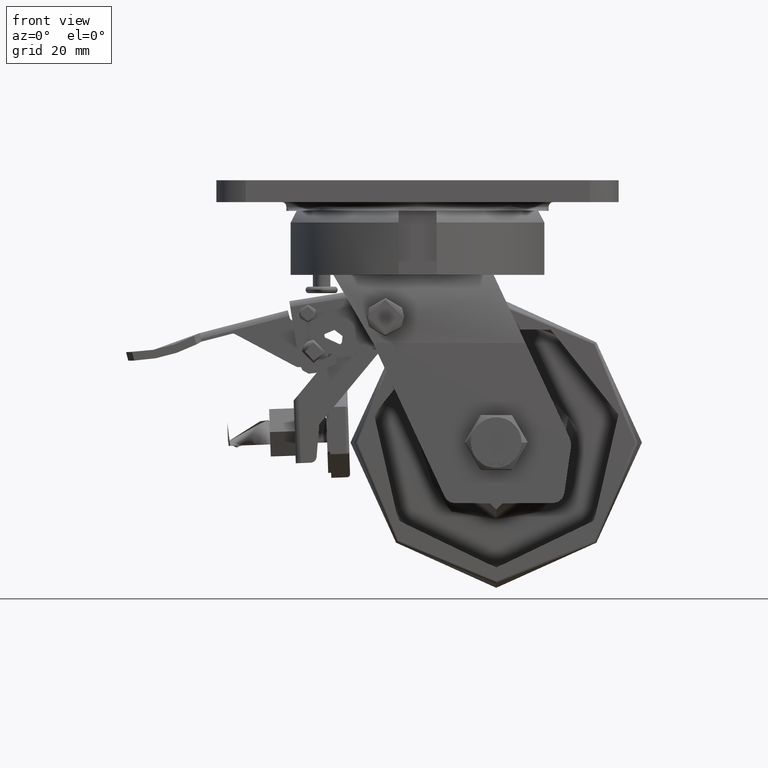
[diagram: clean part render]
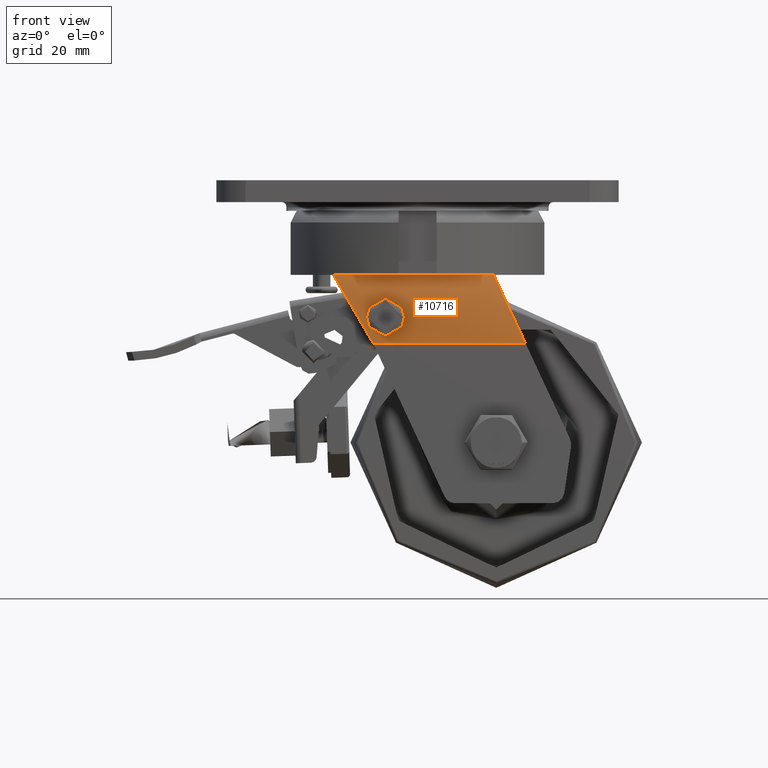
[diagram: same view with one face highlighted and labeled with its STEP entity id]
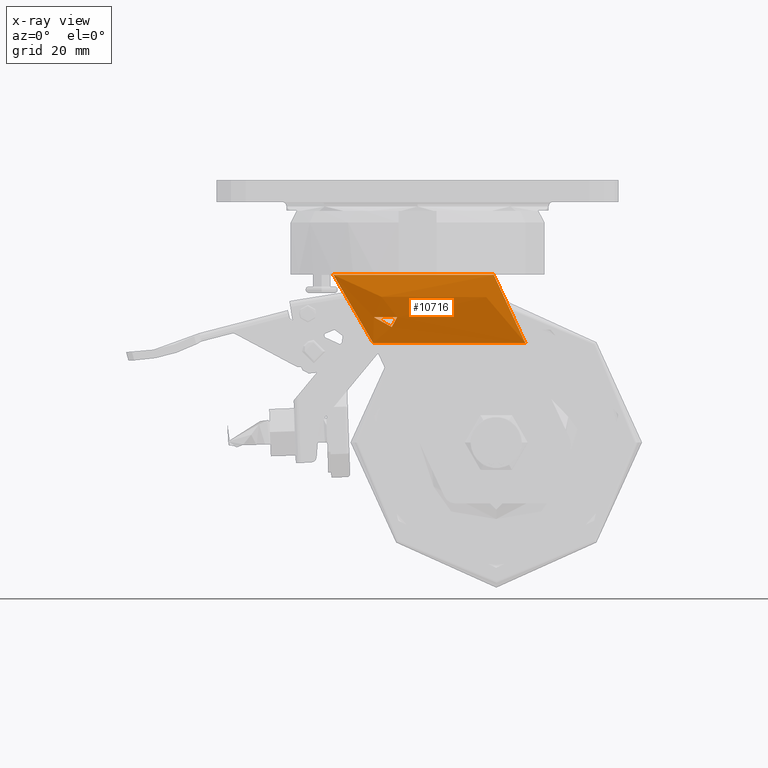
[diagram: x-ray of the same camera — body ghosted, the highlighted face saturated]
A machine part, front view. The second image highlights one B-rep face of the part: STEP entity #10716.
The next image is the same camera in x-ray: the body ghosted, the highlighted face saturated — about 0% of this face is hidden behind the body in this view.
In plain terms, the highlighted face is a freeform B-spline surface patch.
Its self-contained STEP definition (entity closure, byte-faithful):
#182=B_SPLINE_SURFACE_WITH_KNOTS('',3,3,((#28314,#28315,#28316,#28317),
(#28318,#28319,#28320,#28321),(#28322,#28323,#28324,#28325),(#28326,#28327,
#28328,#28329),(#28330,#28331,#28332,#28333),(#28334,#28335,#28336,#28337),
(#28338,#28339,#28340,#28341),(#28342,#28343,#28344,#28345),(#28346,#28347,
#28348,#28349),(#28350,#28351,#28352,#28353),(#28354,#28355,#28356,#28357),
(#28358,#28359,#28360,#28361),(#28362,#28363,#28364,#28365),(#28366,#28367,
#28368,#28369),(#28370,#28371,#28372,#28373),(#28374,#28375,#28376,#28377),
(#28378,#28379,#28380,#28381),(#28382,#28383,#28384,#28385),(#28386,#28387,
#28388,#28389)),.UNSPECIFIED.,.F.,.F.,.F.,(4,3,3,3,3,3,4),(4,4),(-0.00370990396191416,
0.131550517939822,0.364160776380593,0.53718919869411,0.791499248237611,
0.917101152538548,1.0396717818821),(0.,1.),.UNSPECIFIED.);
#360=FACE_BOUND('',#2364,.T.);
#1073=B_SPLINE_CURVE_WITH_KNOTS('',3,(#27824,#27825,#27826,#27827,#27828,
#27829,#27830,#27831,#27832,#27833,#27834,#27835,#27836,#27837,#27838,#27839,
#27840,#27841,#27842,#27843,#27844,#27845,#27846,#27847),.UNSPECIFIED.,
 .F.,.F.,(4,2,2,2,2,2,2,2,2,2,2,4),(-1.66499852036268,-1.54297382093663,
-1.41859001527712,-1.2800342476262,-1.12120778921487,-1.038637875872,-0.977654655405833,
-0.916499382852849,-0.832782608611801,-0.675787088162486,-0.536087213137494,
-0.40111383823658),.UNSPECIFIED.);
#1074=B_SPLINE_CURVE_WITH_KNOTS('',3,(#27849,#27850,#27851,#27852,#27853,
#27854,#27855,#27856,#27857,#27858,#27859,#27860,#27861,#27862,#27863,#27864,
#27865,#27866),.UNSPECIFIED.,.F.,.F.,(4,2,2,2,2,2,2,2,4),(-0.861100462876619,
-0.765535323853415,-0.668712121977349,-0.595200320357881,-0.522276040263934,
-0.429893753316313,-0.283446282000829,-0.142810410142772,-9.99999080875114E-7),
 .UNSPECIFIED.);
#1075=B_SPLINE_CURVE_WITH_KNOTS('',3,(#27867,#27868,#27869,#27870,#27871,
#27872,#27873,#27874,#27875,#27876),.UNSPECIFIED.,.F.,.F.,(4,2,2,2,4),(-0.40111383823658,
-0.386698437178482,-0.2267043317251,-0.123273477841745,-1.00000005165413E-6),
 .UNSPECIFIED.);
#1079=B_SPLINE_CURVE_WITH_KNOTS('',3,(#28270,#28271,#28272,#28273,#28274,
#28275,#28276,#28277,#28278,#28279),.UNSPECIFIED.,.F.,.F.,(4,2,2,2,4),(1.09375907150143E-7,
0.678767673548421,1.39816113454965,2.15377408914372,2.96856502057482),
 .UNSPECIFIED.);
#1080=B_SPLINE_CURVE_WITH_KNOTS('',3,(#28308,#28309,#28310,#28311,#28312,
#28313),.UNSPECIFIED.,.F.,.F.,(4,2,4),(-2.03063581983728,-0.878524468392631,
0.),.UNSPECIFIED.);
#1081=B_SPLINE_CURVE_WITH_KNOTS('',3,(#28390,#28391,#28392,#28393,#28394,
#28395,#28396,#28397,#28398,#28399,#28400,#28401,#28402,#28403,#28404,#28405,
#28406,#28407,#28408),.UNSPECIFIED.,.F.,.F.,(4,3,3,3,3,3,4),(-0.999999996485037,
-0.917101152538548,-0.791499248237611,-0.53718919869411,-0.364160776380593,
-0.131550517939822,1.97638801784676E-9),.UNSPECIFIED.);
#1653=FACE_OUTER_BOUND('',#2363,.T.);
#2363=EDGE_LOOP('',(#9098,#9099,#9100,#9101));
#2364=EDGE_LOOP('',(#9102,#9103,#9104));
#3139=LINE('',#28303,#3937);
#3937=VECTOR('',#14274,1000.);
#5282=VERTEX_POINT('',#27821);
#5283=VERTEX_POINT('',#27823);
#5284=VERTEX_POINT('',#27848);
#5294=VERTEX_POINT('',#27897);
#5297=VERTEX_POINT('',#28269);
#5303=VERTEX_POINT('',#28302);
#5304=VERTEX_POINT('',#28306);
#6595=EDGE_CURVE('',#5283,#5282,#1073,.T.);
#6596=EDGE_CURVE('',#5284,#5283,#1074,.T.);
#6597=EDGE_CURVE('',#5282,#5284,#1075,.T.);
#6612=EDGE_CURVE('',#5297,#5294,#1079,.T.);
#6624=EDGE_CURVE('',#5303,#5294,#3139,.T.);
#6627=EDGE_CURVE('',#5304,#5303,#1080,.T.);
#6628=EDGE_CURVE('',#5297,#5304,#1081,.T.);
#9098=ORIENTED_EDGE('',*,*,#6628,.F.);
#9099=ORIENTED_EDGE('',*,*,#6612,.T.);
#9100=ORIENTED_EDGE('',*,*,#6624,.F.);
#9101=ORIENTED_EDGE('',*,*,#6627,.F.);
#9102=ORIENTED_EDGE('',*,*,#6596,.T.);
#9103=ORIENTED_EDGE('',*,*,#6595,.T.);
#9104=ORIENTED_EDGE('',*,*,#6597,.T.);
#10716=ADVANCED_FACE('',(#1653,#360),#182,.T.);
#14274=DIRECTION('',(-1.,0.,0.));
#27821=CARTESIAN_POINT('',(-7.,-35.7814401129119,-47.0000000270463));
#27823=CARTESIAN_POINT('',(-14.9999999999988,-35.1886421589921,-46.9999969443722));
#27824=CARTESIAN_POINT('Ctrl Pts',(-14.9999999999988,-35.1886421589922,
-46.9999969443727));
#27825=CARTESIAN_POINT('Ctrl Pts',(-14.9999996916354,-35.1390137174211,
-46.5963306966084));
#27826=CARTESIAN_POINT('Ctrl Pts',(-14.9389194422587,-35.0976977634689,
-46.1939715574094));
#27827=CARTESIAN_POINT('Ctrl Pts',(-14.694356180406,-35.0438421211674,-45.4116256249445));
#27828=CARTESIAN_POINT('Ctrl Pts',(-14.5104619766137,-35.0324493900579,
-45.0382205020942));
#27829=CARTESIAN_POINT('Ctrl Pts',(-14.0062602839305,-35.0447232029478,
-44.3212447417022));
#27830=CARTESIAN_POINT('Ctrl Pts',(-13.6779755440374,-35.072350863878,-43.9933559670566));
#27831=CARTESIAN_POINT('Ctrl Pts',(-12.8708090882409,-35.1630583756863,
-43.4253763424155));
#27832=CARTESIAN_POINT('Ctrl Pts',(-12.3849484540769,-35.2292793185565,
-43.2108746956189));
#27833=CARTESIAN_POINT('Ctrl Pts',(-11.6063368697542,-35.3344315173637,
-43.0368157659632));
#27834=CARTESIAN_POINT('Ctrl Pts',(-11.3345664517758,-35.3709801917889,
-43.0046793128287));
#27835=CARTESIAN_POINT('Ctrl Pts',(-10.8600165597369,-35.4325771006835,
-42.9973690168539));
#27836=CARTESIAN_POINT('Ctrl Pts',(-10.6583628976425,-35.4580657536137,
-43.0095076589989));
#27837=CARTESIAN_POINT('Ctrl Pts',(-10.257808852728,-35.5067644251169,-43.0642500629967));
#27838=CARTESIAN_POINT('Ctrl Pts',(-10.059471073117,-35.5299003291765,-43.1068637081512));
#27839=CARTESIAN_POINT('Ctrl Pts',(-9.59892638833751,-35.5810054567616,
-43.2431368113814));
#27840=CARTESIAN_POINT('Ctrl Pts',(-9.34144972515291,-35.6074456886033,
-43.3494418422568));
#27841=CARTESIAN_POINT('Ctrl Pts',(-8.63802497285003,-35.6738649644742,
-43.729962013674));
#27842=CARTESIAN_POINT('Ctrl Pts',(-8.23174017905727,-35.7045554094876,
-44.0656989153369));
#27843=CARTESIAN_POINT('Ctrl Pts',(-7.60694236047774,-35.7448676685434,
-44.8312152403454));
#27844=CARTESIAN_POINT('Ctrl Pts',(-7.37778178804711,-35.7563451656361,
-45.2403735991539));
#27845=CARTESIAN_POINT('Ctrl Pts',(-7.07567347324798,-35.7723015548065,
-46.1044596230755));
#27846=CARTESIAN_POINT('Ctrl Pts',(-6.9999999969624,-35.777001187929,-46.5507983410632));
#27847=CARTESIAN_POINT('Ctrl Pts',(-7.,-35.7814401126447,-47.0000000270489));
#27848=CARTESIAN_POINT('',(-8.84025285186111,-35.8199343944018,-50.3668222786637));
#27849=CARTESIAN_POINT('Ctrl Pts',(-8.84025285186111,-35.8199343944018,
-50.3668222786637));
#27850=CARTESIAN_POINT('Ctrl Pts',(-9.10848720673669,-35.8214091494225,
-50.5388890927176));
#27851=CARTESIAN_POINT('Ctrl Pts',(-9.39631776804397,-35.8217804590409,
-50.6782820737966));
#27852=CARTESIAN_POINT('Ctrl Pts',(-10.0029111944957,-35.8189335109942,
-50.8871662017949));
#27853=CARTESIAN_POINT('Ctrl Pts',(-10.3197796857455,-35.815683074633,-50.9549353280845));
#27854=CARTESIAN_POINT('Ctrl Pts',(-10.8854096373824,-35.8053426070597,
-51.0058634301229));
#27855=CARTESIAN_POINT('Ctrl Pts',(-11.1309849336183,-35.7993829186235,
-51.0053556269109));
#27856=CARTESIAN_POINT('Ctrl Pts',(-11.6169016110648,-35.7837231902785,
-50.9596095048952));
#27857=CARTESIAN_POINT('Ctrl Pts',(-11.8562261412789,-35.7740837900319,
-50.9148271461746));
#27858=CARTESIAN_POINT('Ctrl Pts',(-12.3859781457298,-35.7471245551042,
-50.7648030596027));
#27859=CARTESIAN_POINT('Ctrl Pts',(-12.6711304162761,-35.728522085295,-50.6471512775592));
#27860=CARTESIAN_POINT('Ctrl Pts',(-13.3657400226725,-35.6694353490588,
-50.2619735007936));
#27861=CARTESIAN_POINT('Ctrl Pts',(-13.7439559998449,-35.6227559270925,
-49.9506030154403));
#27862=CARTESIAN_POINT('Ctrl Pts',(-14.3573249121508,-35.5111404875265,
-49.2238285348067));
#27863=CARTESIAN_POINT('Ctrl Pts',(-14.5927485860223,-35.4477547394276,
-48.8187163822007));
#27864=CARTESIAN_POINT('Ctrl Pts',(-14.9163041920372,-35.3150343953021,
-47.9406635966428));
#27865=CARTESIAN_POINT('Ctrl Pts',(-15.0000003609258,-35.2467302487851,
-47.4724720111734));
#27866=CARTESIAN_POINT('Ctrl Pts',(-14.9999999999988,-35.1886421589921,
-46.9999969443722));
#27867=CARTESIAN_POINT('Ctrl Pts',(-7.,-35.7814401126447,-47.0000000270489));
#27868=CARTESIAN_POINT('Ctrl Pts',(-7.00000000032442,-35.781914198656,-47.047975662865));
#27869=CARTESIAN_POINT('Ctrl Pts',(-7.00086311829879,-35.7823835201587,
-47.0959839734187));
#27870=CARTESIAN_POINT('Ctrl Pts',(-7.02179159940883,-35.7880307042578,
-47.6769458125437));
#27871=CARTESIAN_POINT('Ctrl Pts',(-7.14737687417123,-35.7931287467775,
-48.2007059182398));
#27872=CARTESIAN_POINT('Ctrl Pts',(-7.51712402302276,-35.8026499507205,
-48.9971056519583));
#27873=CARTESIAN_POINT('Ctrl Pts',(-7.70211998095599,-35.8065394697103,
-49.2897256066876));
#27874=CARTESIAN_POINT('Ctrl Pts',(-8.1847861234198,-35.8143299752615,-49.8711325571725));
#27875=CARTESIAN_POINT('Ctrl Pts',(-8.49439192238033,-35.8180328477396,
-50.1449596158102));
#27876=CARTESIAN_POINT('Ctrl Pts',(-8.84025285186109,-35.8199343944018,
-50.3668222786636));
#27897=CARTESIAN_POINT('',(-15.2505434782609,-36.,-55.875));
#28269=CARTESIAN_POINT('',(-28.8750006202089,-30.6999061594167,-32.5000001852847));
#28270=CARTESIAN_POINT('Ctrl Pts',(-28.8749994594905,-30.6998999030215,
-32.5000009273331));
#28271=CARTESIAN_POINT('Ctrl Pts',(-27.7568972229095,-31.1348572290713,
-34.4182895057262));
#28272=CARTESIAN_POINT('Ctrl Pts',(-26.6405578532942,-31.5448670017072,
-36.2372270544722));
#28273=CARTESIAN_POINT('Ctrl Pts',(-24.0109016563695,-32.6872122921441,
-40.4574729612945));
#28274=CARTESIAN_POINT('Ctrl Pts',(-22.9101867219103,-33.2521595558917,
-42.2019194292182));
#28275=CARTESIAN_POINT('Ctrl Pts',(-20.7425993261884,-34.362519024337,-45.7251020947023));
#28276=CARTESIAN_POINT('Ctrl Pts',(-19.5982715202932,-34.9474934870807,
-47.6296904092144));
#28277=CARTESIAN_POINT('Ctrl Pts',(-17.3229891702386,-35.7935792409621,
-51.6747034233728));
#28278=CARTESIAN_POINT('Ctrl Pts',(-16.2767161901939,-36.,-53.669208189303));
#28279=CARTESIAN_POINT('Ctrl Pts',(-15.2505434782609,-36.,-55.875));
#28302=CARTESIAN_POINT('',(36.9994565217391,-36.,-55.875));
#28303=CARTESIAN_POINT('',(36.9994565217391,-36.,-55.875));
#28306=CARTESIAN_POINT('',(26.1250000530684,-32.9045810627879,-32.5000000077209));
#28308=CARTESIAN_POINT('Ctrl Pts',(26.1250000183489,-32.904580945222,-32.5000000394416));
#28309=CARTESIAN_POINT('Ctrl Pts',(27.8893520988859,-33.4068045886252,-36.2925325490072));
#28310=CARTESIAN_POINT('Ctrl Pts',(29.5515082367069,-34.5148366101966,-39.8653915365122));
#28311=CARTESIAN_POINT('Ctrl Pts',(33.949512715433,-35.8155467449876,-49.3190460234934));
#28312=CARTESIAN_POINT('Ctrl Pts',(35.7642331950795,-36.,-53.2198470548439));
#28313=CARTESIAN_POINT('Ctrl Pts',(36.9994565217391,-36.,-55.875));
#28314=CARTESIAN_POINT('Ctrl Pts',(26.3207293706681,-32.828384947175,-32.5));
#28315=CARTESIAN_POINT('Ctrl Pts',(29.9449192483618,-33.8855899647833,-40.2916666666666));
#28316=CARTESIAN_POINT('Ctrl Pts',(37.1932990037491,-36.,-47.2169758681116));
#28317=CARTESIAN_POINT('Ctrl Pts',(37.1932990037491,-36.,-55.875));
#28318=CARTESIAN_POINT('Ctrl Pts',(23.9434217893326,-33.758021525029,-32.5));
#28319=CARTESIAN_POINT('Ctrl Pts',(27.5747856336531,-34.5053476833526,-40.2916666666666));
#28320=CARTESIAN_POINT('Ctrl Pts',(34.8375133222939,-36.,-47.2502319616878));
#28321=CARTESIAN_POINT('Ctrl Pts',(34.8375133222939,-36.,-55.875));
#28322=CARTESIAN_POINT('Ctrl Pts',(21.5145396864058,-34.5557518345838,-32.5));
#28323=CARTESIAN_POINT('Ctrl Pts',(25.1702690045501,-35.0371678897225,-40.2916666666666));
#28324=CARTESIAN_POINT('Ctrl Pts',(32.4817276408386,-36.,-47.2584291808554));
#28325=CARTESIAN_POINT('Ctrl Pts',(32.4817276408386,-36.,-55.875));
#28326=CARTESIAN_POINT('Ctrl Pts',(19.0489798752063,-35.2166832384052,-32.5));
#28327=CARTESIAN_POINT('Ctrl Pts',(22.741300569932,-35.4777888256035,-40.2916666666666));
#28328=CARTESIAN_POINT('Ctrl Pts',(30.1259419593834,-36.,-47.2494074988667));
#28329=CARTESIAN_POINT('Ctrl Pts',(30.1259419593834,-36.,-55.875));
#28330=CARTESIAN_POINT('Ctrl Pts',(14.8089036073611,-36.3533011972507,-32.5));
#28331=CARTESIAN_POINT('Ctrl Pts',(18.5641512798652,-36.2355341315005,-40.2916666666666));
#28332=CARTESIAN_POINT('Ctrl Pts',(26.0746466248733,-36.,-47.233892718198));
#28333=CARTESIAN_POINT('Ctrl Pts',(26.0746466248733,-36.,-55.875));
#28334=CARTESIAN_POINT('Ctrl Pts',(10.4602505383606,-37.0845081655079,-32.5));
#28335=CARTESIAN_POINT('Ctrl Pts',(14.3146174556948,-36.7230054436719,-40.2916666666667));
#28336=CARTESIAN_POINT('Ctrl Pts',(22.0233512903632,-36.,-47.176346134596));
#28337=CARTESIAN_POINT('Ctrl Pts',(22.0233512903632,-36.,-55.875));
#28338=CARTESIAN_POINT('Ctrl Pts',(6.08161598403592,-37.3970886850346,-32.5));
#28339=CARTESIAN_POINT('Ctrl Pts',(10.0450959746417,-36.9313924566898,-40.2916666666667));
#28340=CARTESIAN_POINT('Ctrl Pts',(17.9720559558532,-36.,-47.1215668699924));
#28341=CARTESIAN_POINT('Ctrl Pts',(17.9720559558532,-36.,-55.875));
#28342=CARTESIAN_POINT('Ctrl Pts',(2.82454454659896,-37.6296034266552,-32.5));
#28343=CARTESIAN_POINT('Ctrl Pts',(6.86918889791911,-37.0864022844368,-40.2916666666667));
#28344=CARTESIAN_POINT('Ctrl Pts',(14.9584776005594,-36.,-47.0808190122093));
#28345=CARTESIAN_POINT('Ctrl Pts',(14.9584776005594,-36.,-55.875));
#28346=CARTESIAN_POINT('Ctrl Pts',(-0.449018921985088,-37.6307886546279,
-32.5));
#28347=CARTESIAN_POINT('Ctrl Pts',(3.68228713376515,-37.0871924364186,-40.2916666666667));
#28348=CARTESIAN_POINT('Ctrl Pts',(11.9448992452656,-36.,-47.0394439270838));
#28349=CARTESIAN_POINT('Ctrl Pts',(11.9448992452656,-36.,-55.875));
#28350=CARTESIAN_POINT('Ctrl Pts',(-3.70625787427507,-37.4006324873776,
-32.5));
#28351=CARTESIAN_POINT('Ctrl Pts',(0.506268380473905,-36.9337549915851,
-40.2916666666667));
#28352=CARTESIAN_POINT('Ctrl Pts',(8.93132088997186,-36.,-47.0053810944549));
#28353=CARTESIAN_POINT('Ctrl Pts',(8.93132088997186,-36.,-55.875));
#28354=CARTESIAN_POINT('Ctrl Pts',(-8.49361354830975,-37.0623584309331,
-32.5));
#28355=CARTESIAN_POINT('Ctrl Pts',(-4.16171318984343,-36.7082389539554,
-40.2916666666667));
#28356=CARTESIAN_POINT('Ctrl Pts',(4.50208752708922,-36.,-46.9553169458161));
#28357=CARTESIAN_POINT('Ctrl Pts',(4.50208752708922,-36.,-55.875));
#28358=CARTESIAN_POINT('Ctrl Pts',(-13.2454394012275,-36.2233928910727,
-32.5));
#28359=CARTESIAN_POINT('Ctrl Pts',(-8.80600821274947,-36.1489285940485,
-40.2916666666667));
#28360=CARTESIAN_POINT('Ctrl Pts',(0.0728541642065796,-36.,-46.9175622519324));
#28361=CARTESIAN_POINT('Ctrl Pts',(0.0728541642065796,-36.,-55.875));
#28362=CARTESIAN_POINT('Ctrl Pts',(-17.859190980326,-34.9018407531148,-32.5));
#28363=CARTESIAN_POINT('Ctrl Pts',(-13.358253719776,-35.2678938354099,-40.2916666666667));
#28364=CARTESIAN_POINT('Ctrl Pts',(-4.35637919867606,-36.,-46.8694819573436));
#28365=CARTESIAN_POINT('Ctrl Pts',(-4.35637919867606,-36.,-55.875));
#28366=CARTESIAN_POINT('Ctrl Pts',(-20.1378897000442,-34.2491356576676,
-32.5));
#28367=CARTESIAN_POINT('Ctrl Pts',(-15.6065750328908,-34.8327571051117,
-40.2916666666667));
#28368=CARTESIAN_POINT('Ctrl Pts',(-6.54394569858405,-36.,-46.845735445672));
#28369=CARTESIAN_POINT('Ctrl Pts',(-6.54394569858405,-36.,-55.875));
#28370=CARTESIAN_POINT('Ctrl Pts',(-22.3829598151286,-33.4790437832707,
-32.5));
#28371=CARTESIAN_POINT('Ctrl Pts',(-17.8324772762497,-34.3193625221805,
-40.2916666666667));
#28372=CARTESIAN_POINT('Ctrl Pts',(-8.73151219849203,-36.,-46.8181695375208));
#28373=CARTESIAN_POINT('Ctrl Pts',(-8.73151219849203,-36.,-55.875));
#28374=CARTESIAN_POINT('Ctrl Pts',(-24.5825251152752,-32.5956388436993,
-32.5));
#28375=CARTESIAN_POINT('Ctrl Pts',(-20.0280429763168,-33.7304258957995,
-40.2916666666667));
#28376=CARTESIAN_POINT('Ctrl Pts',(-10.9190786984,-36.,-46.7792065190023));
#28377=CARTESIAN_POINT('Ctrl Pts',(-10.9190786984,-36.,-55.875));
#28378=CARTESIAN_POINT('Ctrl Pts',(-26.7290061310027,-31.7335539890857,
-32.5));
#28379=CARTESIAN_POINT('Ctrl Pts',(-22.1706209182685,-33.1557026593905,
-40.2916666666667));
#28380=CARTESIAN_POINT('Ctrl Pts',(-13.0538504928001,-36.,-46.7411838335381));
#28381=CARTESIAN_POINT('Ctrl Pts',(-13.0538504928001,-36.,-55.875));
#28382=CARTESIAN_POINT('Ctrl Pts',(-28.8321465129807,-30.7635670292682,
-32.5));
#28383=CARTESIAN_POINT('Ctrl Pts',(-24.2843051043872,-32.5090446861788,
-40.2916666666667));
#28384=CARTESIAN_POINT('Ctrl Pts',(-15.1886222872002,-36.,-46.6866074306838));
#28385=CARTESIAN_POINT('Ctrl Pts',(-15.1886222872002,-36.,-55.875));
#28386=CARTESIAN_POINT('Ctrl Pts',(-30.8813505653639,-29.6905647929569,
-32.5));
#28387=CARTESIAN_POINT('Ctrl Pts',(-26.3620317374427,-31.7937098619712,
-40.2916666666667));
#28388=CARTESIAN_POINT('Ctrl Pts',(-17.3233940816003,-36.,-46.6306820409882));
#28389=CARTESIAN_POINT('Ctrl Pts',(-17.3233940816003,-36.,-55.875));
#28390=CARTESIAN_POINT('Ctrl Pts',(-28.8749938941181,-30.6999026410538,
-32.5));
#28391=CARTESIAN_POINT('Ctrl Pts',(-27.4661816169438,-31.3801643979906,
-32.5));
#28392=CARTESIAN_POINT('Ctrl Pts',(-26.0342660071176,-32.0125804208619,
-32.5));
#28393=CARTESIAN_POINT('Ctrl Pts',(-24.5825251152752,-32.5956388436993,
-32.5));
#28394=CARTESIAN_POINT('Ctrl Pts',(-22.3829598151286,-33.4790437832707,
-32.5));
#28395=CARTESIAN_POINT('Ctrl Pts',(-20.1378897000442,-34.2491356576676,
-32.5));
#28396=CARTESIAN_POINT('Ctrl Pts',(-17.859190980326,-34.9018407531148,-32.5));
#28397=CARTESIAN_POINT('Ctrl Pts',(-13.2454394012275,-36.2233928910727,
-32.5));
#28398=CARTESIAN_POINT('Ctrl Pts',(-8.49361354830975,-37.0623584309331,
-32.5));
#28399=CARTESIAN_POINT('Ctrl Pts',(-3.70625787427507,-37.4006324873776,
-32.5));
#28400=CARTESIAN_POINT('Ctrl Pts',(-0.449018921985088,-37.6307886546279,
-32.5));
#28401=CARTESIAN_POINT('Ctrl Pts',(2.82454454659896,-37.6296034266552,-32.5));
#28402=CARTESIAN_POINT('Ctrl Pts',(6.08161598403592,-37.3970886850346,-32.5));
#28403=CARTESIAN_POINT('Ctrl Pts',(10.4602505383606,-37.0845081655079,-32.5));
#28404=CARTESIAN_POINT('Ctrl Pts',(14.8089036073611,-36.3533011972507,-32.5));
#28405=CARTESIAN_POINT('Ctrl Pts',(19.0489798752063,-35.2166832384052,-32.5));
#28406=CARTESIAN_POINT('Ctrl Pts',(21.4469146922619,-34.5738797591671,-32.5));
#28407=CARTESIAN_POINT('Ctrl Pts',(23.8101561899405,-33.8016786607606,-32.5));
#28408=CARTESIAN_POINT('Ctrl Pts',(26.1250000047667,-32.9045809381517,-32.5));